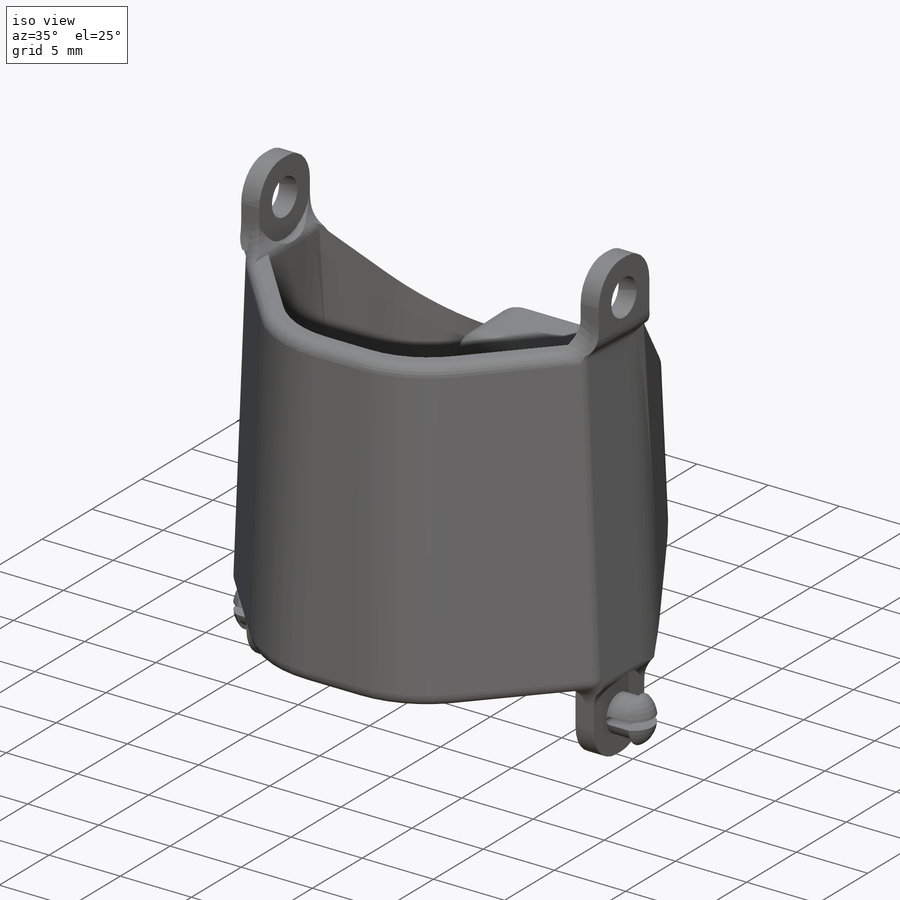
[diagram: iso view]
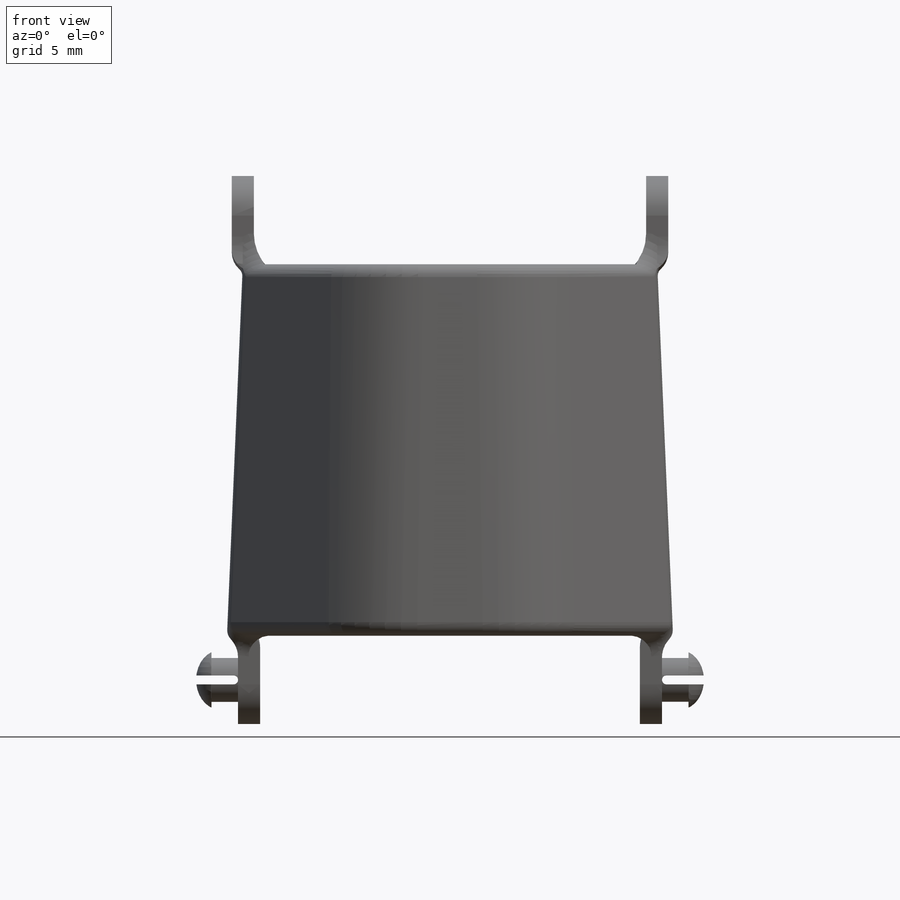
[diagram: front view]
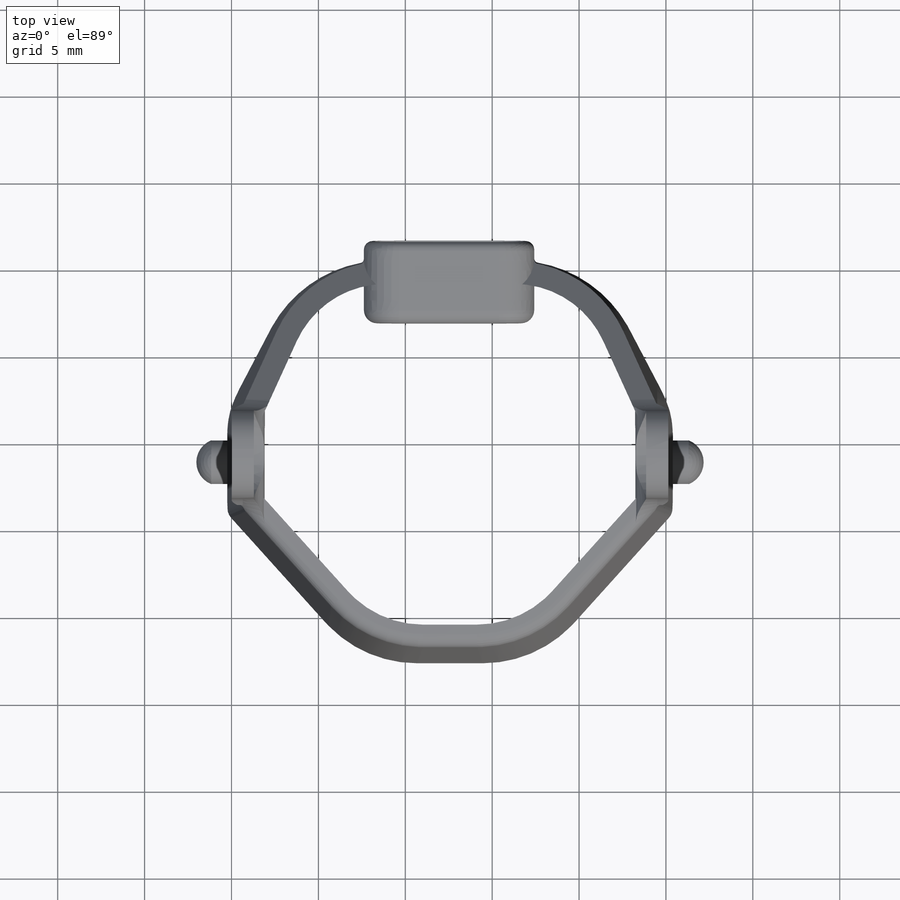
[diagram: top view]
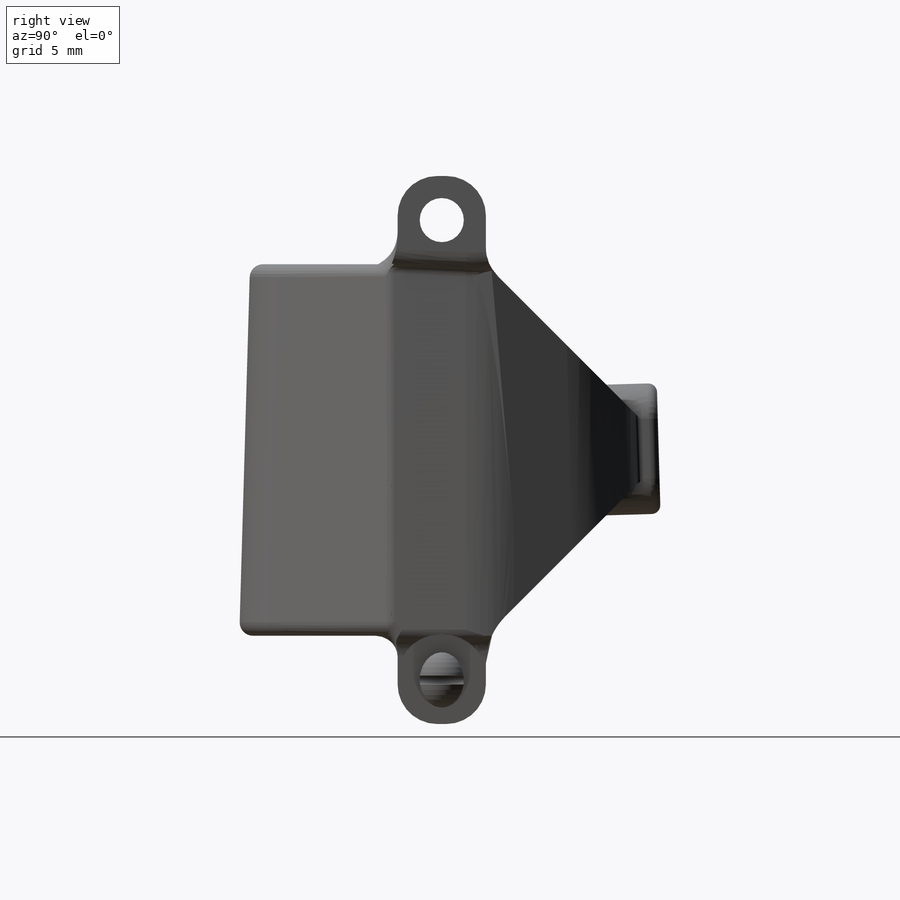
[diagram: right view]
SOLIDWORKS PART (.sldprt)
format: sldprt  version: not decoded by parser v0  size: 2,893,312 bytes
history: native  units: mm
features: fillet x26, sketch x25, cut_extrude x14, extrude x7, material x1, plane x1, shell x1, dome x1, mirror x1 (+16 scaffold rows collapsed)
feature tree (93):
  scaffold x16  (default folders/planes/origin — collapsed)
  material  "Material <not specified>"
  sketch  "Sketch1"  dims[c1.D4=2.3368mm c1.D3=5.08mm c1.D1=~40.198806mm c1.D6=25.146mm c1.D2=~22.826773mm c2.D3=8.7249mm c2.D5=2.54mm c2.D6=5.08mm c2.D1=~15.92506mm c2.D2=~9.017247mm c3.D3=5.08mm c3.D5=~10.894874mm c3.bottomWidthz=23.876mm]
  sketch  "Sketch2"  dims[c1.D1=~52.675108mm c1.D3=63.5mm c2.D1=~68.579883mm c2.D2=~11.429983mm c2.heightz=~68.579883mm]
  plane  "Plane3"
  sketch  "Sketch7"  dims[c1.D4=2.3368mm c1.D3=5.08mm c1.D1=~40.198806mm c1.D6=19.7358mm c1.D2=~22.826773mm c2.D3=8.7249mm c2.D5=2.54mm c2.D6=5.08mm c2.D1=~12.875581mm c2.D2=~7.29054mm c3.D3=5.08mm c3.D5=~8.808621mm c3.topWidthz=19.304mm]
  sketch  "Sketch8"  dims[c1.D1=~21.166667mm c1.D2=~21.98472mm c2.D2=45.0deg c2.D3=~11.680502mm c3.D3=45.0deg c3.D4=~12.642562mm c4.D4=45.0deg c4.D2=63.5mm c4.D3=69.85mm c5.D4=~26.458333mm]
  cut_extrude  "Cut-Extrude2"  [1 undecoded]
  sketch  "Sketch9"
  sketch  "Sketch11"  dims[c1.D1=19.05mm c1.D2=~18.996599mm c2.D1=19.05mm c2.D2=19.05mm c2.D3=12.7mm]
  cut_extrude  "Cut-Extrude3"  [1 undecoded]
  sketch  "Sketch12"
  extrude  "Boss-Extrude1"  Depth=5.08mm
  sketch  "Sketch13"
  extrude  "Boss-Extrude2"  Depth=5.08mm
  sketch  "Sketch14"  dims[D1=2.54mm]
  cut_extrude  "Cut-Extrude5"  Depth=30.32mm
  fillet  "Fillet2"  Radius=2.286mm
  fillet  "Fillet5"  Radius=5.842mm
  fillet  "Fillet8"  Radius=5.08mm
  shell  "Shell1"  Thickness=1.27mm
  fillet  "Fillet9"  Radius=0.762mm
  sketch  "Sketch16"
  cut_extrude  "Cut-Extrude6"  [1 undecoded]
  sketch  "Sketch17"
  extrude  "Boss-Extrude6"  Depth=1.524mm
  sketch  "Sketch18"  dims[D1=0.3175mm]
  extrude  "Boss-Extrude8"  Depth=0.0254mm
  dome  "Dome1"
  sketch  "Sketch19"  dims[D1=0.508mm]
  cut_extrude  "Cut-Extrude8"  [1 undecoded]
  sketch  "Sketch24"
  cut_extrude  "Cut-Extrude12"  Depth=21.8948mm
  fillet  "Fillet20"  Radius=2.794mm
  sketch  "Sketch26"
  cut_extrude  "Cut-Extrude13"  [1 undecoded]
  fillet  "Fillet21"  Radius=1.016mm
  sketch  "Sketch27"
  cut_extrude  "Cut-Extrude14"  [1 undecoded]
  fillet  "Fillet22"  Radius=1.524mm
  sketch  "Sketch28"
  cut_extrude  "Cut-Extrude15"  [1 undecoded]
  fillet  "Fillet23"  Radius=0.762mm
  fillet  "Fillet24"  Radius=1.016mm
  fillet  "Fillet25"  Radius=1.27mm
  fillet  "Fillet26"  Radius=3.81mm
  fillet  "Fillet28"  Radius=2.286mm
  fillet  "Fillet29"  Radius=2.286mm
  sketch  "Sketch31"  dims[c1.D1=0.0mm c1.D2=0.0mm c2.D1=0.0mm]
  extrude  "Boss-Extrude10"  Depth=0.635mm
  sketch  "Sketch33"  dims[D1=0.0mm D2=0.0mm]
  extrude  "Boss-Extrude11"  Depth=0.635mm
  fillet  "Fillet50"  Radius=0.508mm
  fillet  "Fillet51"  Radius=1.27mm
  sketch  "Sketch42"  dims[D1=0.0mm]
  cut_extrude  "Cut-Extrude23"  [1 undecoded]
  mirror  "Mirror1"
  sketch  "Sketch36"  dims[D1=9.8044mm D2=7.5184mm]
  extrude  "Boss-Extrude12"  Depth=3.556mm
  sketch  "Sketch37"  dims[D1=1.651mm]
  cut_extrude  "Cut-Extrude19"  Depth=1.016mm
  sketch  "Sketch38"  dims[D1=0.635mm]
  cut_extrude  "Cut-Extrude20"  Depth=0.508mm
  fillet  "Fillet39"  Radius=1.905mm
  fillet  "Fillet40"  Radius=1.524mm
  fillet  "Fillet42"  Radius=0.508mm
  sketch  "Sketch39"  dims[D1=5.0038mm]
  cut_extrude  "Cut-Extrude21"  [1 undecoded]
  fillet  "Fillet44"  Radius=0.762mm
  sketch  "Sketch41"  dims[D1=2.032mm D2=3.81mm]
  cut_extrude  "Cut-Extrude22"  Depth=2.3114mm
  fillet  "Fillet45"  Radius=0.762mm
  fillet  "Fillet46"  Radius=0.762mm
  fillet  "Fillet47"  Radius=0.762mm
  fillet  "Fillet49"  Radius=0.254mm
  fillet  "Fillet52"  Radius=0.3048mm
  fillet  "Fillet58"  Radius=0.508mm
  fillet  "Fillet60"  Radius=0.508mm Height=63.5mm sectionWidth=25.146mm sectionWidth2=19.7358mm Thickness=0.0254mm
decode coverage: 55 of 75 modeling features carry decoded parameters
note: ~ marks probable driven/reference dimensions
note: 9 parameter values undecoded
summary: no parameter record found for 9 features
note: suppression state not decoded; provenance and decode notes live in map.json
